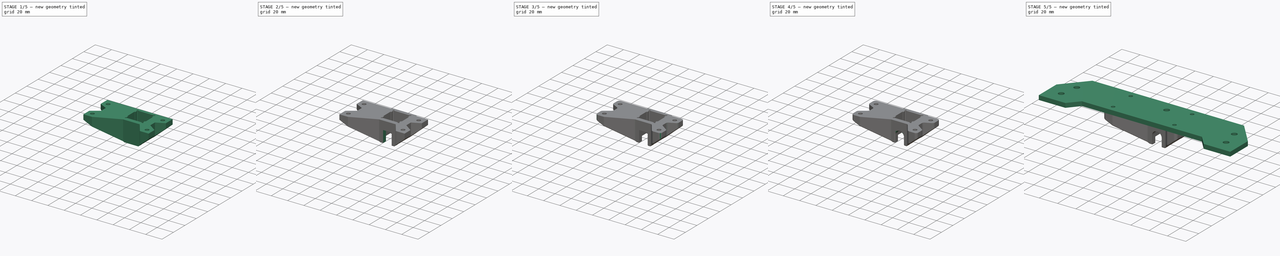
[diagram: build sequence overview — one tinted view per stage of 5, left to right]
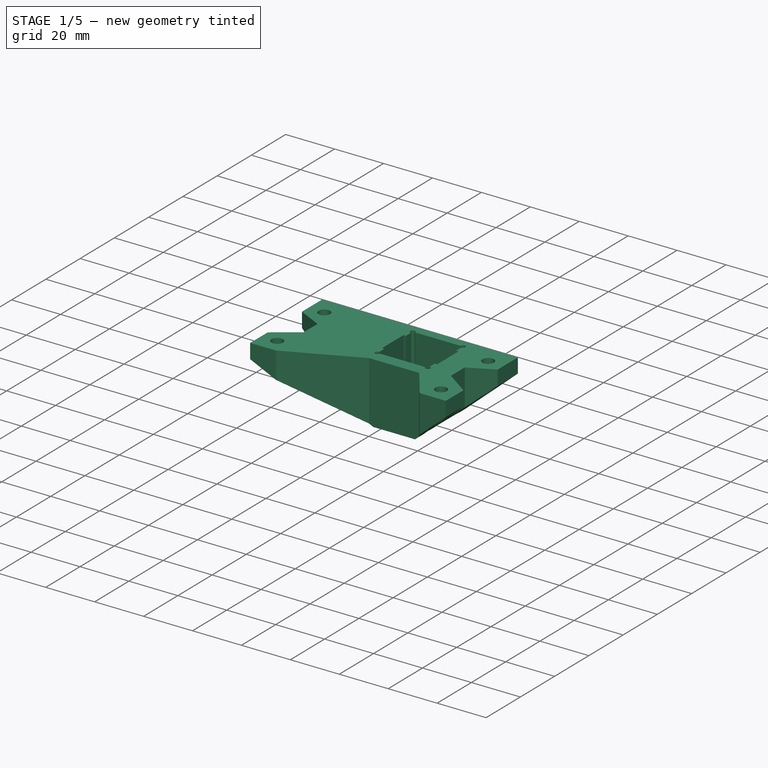
[diagram: stage 1 of 5 — iso view after this stage's code; geometry added in this stage tinted green]
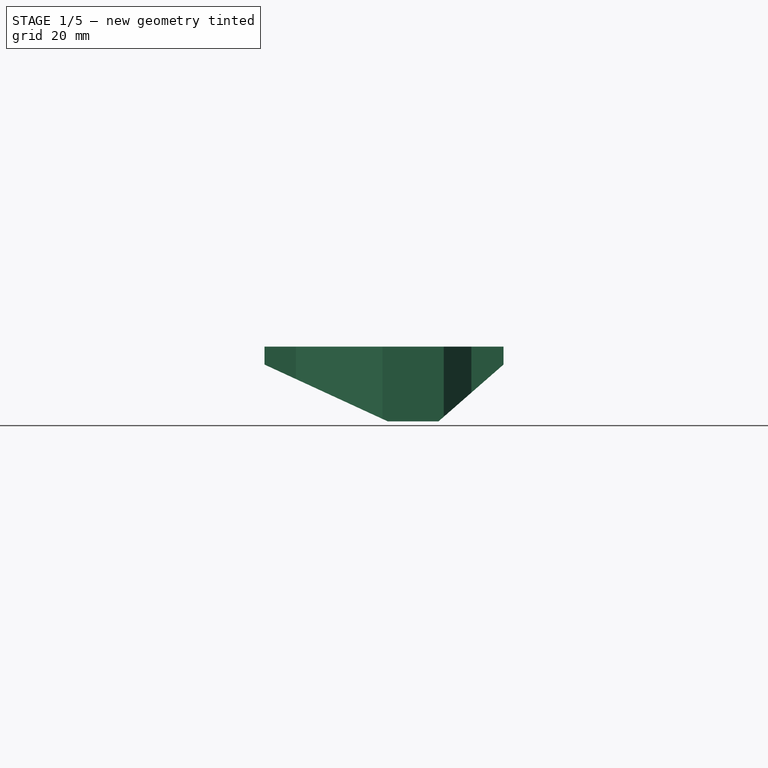
[diagram: stage 1 of 5 — front view after this stage's code; geometry added in this stage tinted green]
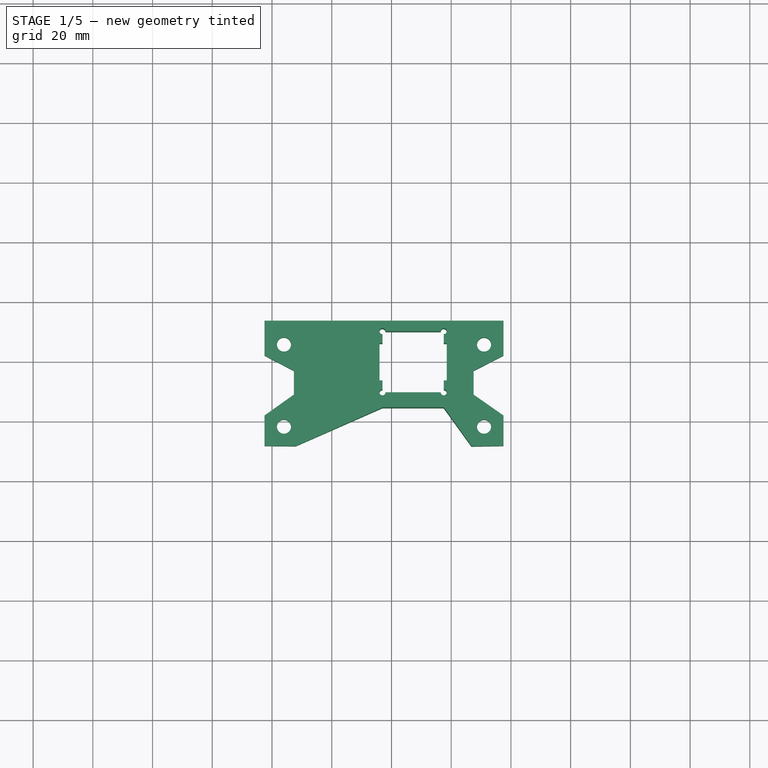
[diagram: stage 1 of 5 — top view after this stage's code; geometry added in this stage tinted green]
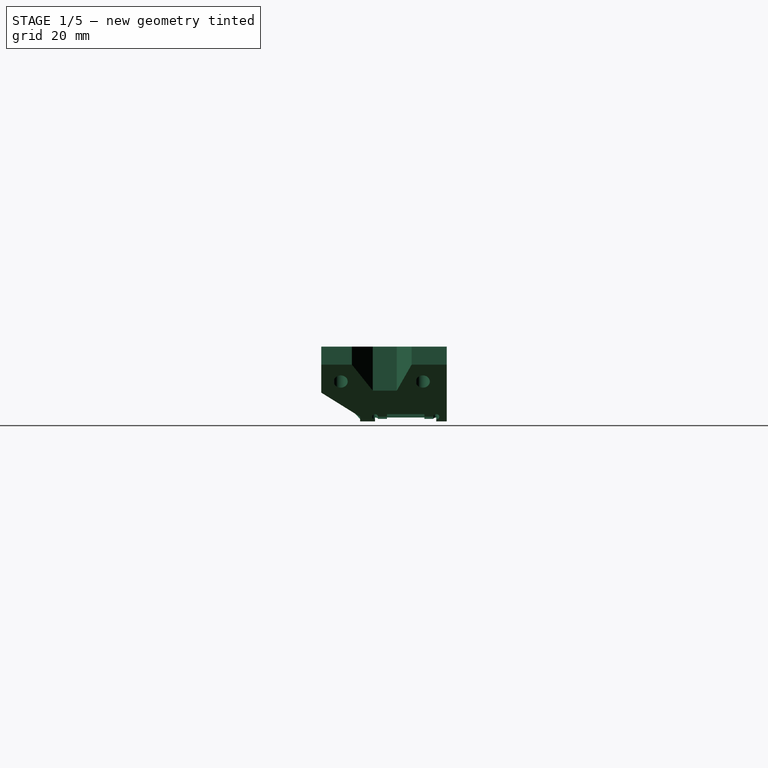
[diagram: stage 1 of 5 — right view after this stage's code; geometry added in this stage tinted green]
FCSTD DOCUMENT  (FreeCAD 0.17R13662 (Git))
Label: Y_idler_housing
License: CreativeCommons Attribution-ShareAlike
LicenseURL: http://creativecommons.org/licenses/by-sa/4.0/
objects: Sketcher::SketchObject×8, PartDesign::Pocket×7, PartDesign::Fillet×7, Part::FeaturePython×2, App::FeaturePython×2, PartDesign::Pad×1, PartDesign::Chamfer×1, PartDesign::Body×1
note: 35 computed .brp shape members not serialized (recipe doc carries the construction recipe); baked Part::Feature solids carry a one-line shape summary decoded from their .brp

FEATURE [App::FeaturePython] circularEdgeConstraint01  label="circularEdgeConstraint01__y_end_plate_step1_01"  # a2plus constraint (typed FeaturePython)
  Object1 = Y_idler_housing_v3_01
  Object2 = y_end_plate_step1_01
  SubElement1 = Edge64
  SubElement2 = Edge52
  Type = circularEdge
  directionConstraint = 1
  lockRotation = false
  offset = 0
FEATURE [App::FeaturePython] circularEdgeConstraint01_mirror  label="circularEdgeConstraint01__Y_idler_housing_v3_01"  # a2plus constraint (typed FeaturePython)
  Object1 = Y_idler_housing_v3_01
  Object2 = y_end_plate_step1_01
  SubElement1 = Edge64
  SubElement2 = Edge52
  Type = circularEdge
  directionConstraint = 1
  lockRotation = false
  offset = 0
FEATURE [Sketcher::SketchObject] Sketch
  MapMode = 5
  Support = -> [XY_Plane]
  sketch-geometry (16):
    g0: LineSegment StartX=-42.5 StartY=11.5 StartZ=0 EndX=-42.5 EndY=21.75 EndZ=0
    g1: LineSegment StartX=-42.5 StartY=21.75 StartZ=0 EndX=-32.6869 EndY=28.75 EndZ=0
    g2: LineSegment StartX=-32.6869 StartY=28.75 StartZ=0 EndX=-32.6869 EndY=36.75 EndZ=0
    g3: LineSegment StartX=-32.6869 StartY=36.75 StartZ=0 EndX=-42.5 EndY=41.75 EndZ=0
    g4: LineSegment StartX=-42.5 StartY=41.75 StartZ=0 EndX=-42.5 EndY=53.5 EndZ=0
    g5: LineSegment StartX=-42.5 StartY=53.5 StartZ=0 EndX=37.5 EndY=53.5 EndZ=0
    g6: LineSegment StartX=37.5 StartY=53.5 StartZ=0 EndX=37.5 EndY=41.75 EndZ=0
    g7: LineSegment StartX=37.5 StartY=41.75 StartZ=0 EndX=27.5 EndY=36.7642 EndZ=0
    g8: LineSegment StartX=27.5 StartY=36.7642 StartZ=0 EndX=27.5 EndY=28.7521 EndZ=0
    g9: LineSegment StartX=27.5 StartY=28.7521 StartZ=0 EndX=37.5 EndY=21.75 EndZ=0
    g10: LineSegment StartX=37.5 StartY=21.75 StartZ=0 EndX=37.5 EndY=11.5 EndZ=0
    g11: LineSegment StartX=37.5 StartY=11.5 StartZ=0 EndX=26.75 EndY=11.5 EndZ=0
    g12: LineSegment StartX=26.75 StartY=11.5 StartZ=0 EndX=17.5 EndY=24.5 EndZ=0
    g13: LineSegment StartX=17.5 StartY=24.5 StartZ=0 EndX=-3 EndY=24.5 EndZ=0
    g14: LineSegment StartX=-3 StartY=24.5 StartZ=0 EndX=-32 EndY=11.5 EndZ=0
    g15: LineSegment StartX=-32 StartY=11.5 StartZ=0 EndX=-42.5 EndY=11.5 EndZ=0
  constraints (48):
    c: Vertical(g0)
    c: Coincident(g0,g1)
    c: Coincident(g1,g2)
    c: Vertical(g2)
    c: Coincident(g2,g3)
    c: Coincident(g3,g4)
    c: Vertical(g4)
    c: Coincident(g4,g5)
    c: Horizontal(g5)
    c: DistanceY(g0) = 11.5
    c: DistanceX(g0) = -42.5
    c: DistanceX(g3,g0) = 0
    c: DistanceY(g4) = 53.5
    c: Coincident(g5,g6)
    c: Vertical(g6)
    c: Coincident(g6,g7)
    c: Coincident(g7,g8)
    c: Vertical(g8)
    c: Coincident(g8,g9)
    c: Coincident(g9,g10)
    c: Vertical(g10)
    c: DistanceX(g10) = 37.5
    c: DistanceY(g0,g0) = 10.25
    c: Equal(g10,g0)
    c: DistanceY(g4,g4) = 11.75
    c: Equal(g6,g4)
    c: DistanceX(g9,g6) = 0
    c: Angle(g9) = -0.610865
    c: DistanceX(g9,g9) = 10
    c: Angle(g7) = -2.67908
    c: Coincident(g10,g11)
    c: Horizontal(g11)
    c: Coincident(g11,g12)
    c: Coincident(g12,g13)
    c: Horizontal(g13)
    c: Coincident(g13,g14)
    c: Coincident(g14,g15)
    c: Coincident(g15,g0)
    c: Horizontal(g15)
    c: DistanceX(g15,g15) = 10.5
    c: DistanceX(g14,g14) = 29
    c: DistanceY(g14,g14) = 13
    c: DistanceX(g13,g13) = 20.5
    c: DistanceY(g10) = 11.5
    c: DistanceX(g12,g12) = 9.25
    c: Angle(g3) = 2.67035
    c: DistanceY(g3,g3) = 5
    c: DistanceY(g2,g2) = 8
FEATURE [PartDesign::Pad] Pad
  Length = 25
  Length2 = 100
  Profile = -> Sketch
  Reversed = true
  Type = 0
FEATURE [Sketcher::SketchObject] Sketch001
  ExternalGeometry = -> [Pad]
  MapMode = 5
  Placement = pos=(0,53.5,0) rot=(0,0.707107,0.707107;3.14159rad)
  Support = -> [Pad]
  sketch-geometry (6):
    g0: LineSegment StartX=42.5 StartY=-6 StartZ=0 EndX=1.25 EndY=-25 EndZ=0
    g1: LineSegment StartX=1.25 StartY=-25 StartZ=0 EndX=42.5 EndY=-25 EndZ=0
    g2: LineSegment StartX=42.5 StartY=-25 StartZ=0 EndX=42.5 EndY=-6 EndZ=0
    g3: LineSegment StartX=-37.5 StartY=-6 StartZ=0 EndX=-15.75 EndY=-25 EndZ=0
    g4: LineSegment StartX=-15.75 StartY=-25 StartZ=0 EndX=-37.5 EndY=-25 EndZ=0
    g5: LineSegment StartX=-37.5 StartY=-25 StartZ=0 EndX=-37.5 EndY=-6 EndZ=0
  constraints (16):
    c: Coincident(g0,g1)
    c: Horizontal(g1)
    c: Coincident(g1,g2)
    c: Coincident(g2,g0)
    c: Coincident(g3,g4)
    c: Horizontal(g4)
    c: Coincident(g4,g5)
    c: Coincident(g5,g3)
    c: DistanceY(g5,g5) = 19
    c: DistanceX(g4,g4) = 21.75
    c: DistanceY(g2,g2) = 19
    c: DistanceX(g1,g1) = 41.25
    c: Coincident(g1,g-4)
    c: Coincident(g4,g-3)
    c: PointOnObject(g3,g-3)
    c: PointOnObject(g0,g-4)
FEATURE [PartDesign::Pocket] Pocket
  BaseFeature = -> Pad
  Length = 5
  Length2 = 100
  Profile = -> Sketch001
  Type = 1
FEATURE [Sketcher::SketchObject] Sketch002
  ExternalGeometry = -> [Pocket]
  MapMode = 5
  Placement = pos=(0,0,-25) rot=(1,0,0;3.14159rad)
  sketch-geometry (12):
    g0: LineSegment StartX=-3 StartY=-29.5 StartZ=0 EndX=17.5 EndY=-29.5 EndZ=0
    g1: LineSegment StartX=17.5 StartY=-29.5 StartZ=0 EndX=17.5 EndY=-50 EndZ=0
    g2: LineSegment StartX=17.5 StartY=-50 StartZ=0 EndX=-3 EndY=-50 EndZ=0
    g3: LineSegment StartX=-3 StartY=-50 StartZ=0 EndX=-3 EndY=-29.5 EndZ=0
    g4: Circle CenterX=31 CenterY=-18 CenterZ=0 NormalX=0 NormalY=0 NormalZ=1 AngleXU=0 Radius=2.35
    g5: Circle CenterX=31 CenterY=-45.5 CenterZ=0 NormalX=0 NormalY=0 NormalZ=1 AngleXU=0 Radius=2.35
    g6: Circle CenterX=-36 CenterY=-45.5 CenterZ=0 NormalX=0 NormalY=0 NormalZ=1 AngleXU=0 Radius=2.35
    g7: Circle CenterX=-36 CenterY=-18 CenterZ=0 NormalX=0 NormalY=0 NormalZ=1 AngleXU=0 Radius=2.35
    g8: LineSegment [constr] StartX=-36 StartY=-18 StartZ=0 EndX=31 EndY=-18 EndZ=0
    g9: LineSegment [constr] StartX=31 StartY=-18 StartZ=0 EndX=31 EndY=-45.5 EndZ=0
    g10: LineSegment [constr] StartX=31 StartY=-45.5 StartZ=0 EndX=-36 EndY=-45.5 EndZ=0
    g11: LineSegment [constr] StartX=-36 StartY=-45.5 StartZ=0 EndX=-36 EndY=-18 EndZ=0
  constraints (32):
    c: Coincident(g0,g1)
    c: Coincident(g1,g2)
    c: Coincident(g2,g3)
    c: Coincident(g3,g0)
    c: Horizontal(g0)
    c: Horizontal(g2)
    c: Vertical(g1)
    c: Vertical(g3)
    c: DistanceY(g3,g3) = 20.5
    c: Coincident(g8,g9)
    c: Coincident(g9,g10)
    c: Coincident(g10,g11)
    c: Coincident(g11,g8)
    c: Horizontal(g8)
    c: Horizontal(g10)
    c: Vertical(g9)
    c: Vertical(g11)
    c: Coincident(g8,g7)
    c: Coincident(g9,g5)
    c: Coincident(g4,g8)
    c: Coincident(g6,g10)
    c: Radius(g4) = 2.35
    c: Equal(g4,g5)
    c: Equal(g4,g6)
    c: Equal(g4,g7)
    c: DistanceX(g7,g-3) = -6.5
    c: DistanceY(g7,g-3) = 6.5
    c: DistanceX(g8,g8) = 67
    c: DistanceY(g9,g9) = 27.5
    c: DistanceX(g0,g-4) = 1.75
    c: DistanceY(g0,g-4) = 5
    c: DistanceX(g0,g0) = 20.5
FEATURE [PartDesign::Pocket] Pocket001
  BaseFeature = -> Pocket
  Length = 5
  Length2 = 100
  Profile = -> Sketch002
  Type = 1
FEATURE [Sketcher::SketchObject] Sketch003
  ExternalGeometry = -> [Pocket001]
  MapMode = 5
  Placement = pos=(0,0,-25) rot=(1,0,0;3.14159rad)
  sketch-geometry (8):
    g0: Circle CenterX=-3 CenterY=-29.5 CenterZ=0 NormalX=0 NormalY=0 NormalZ=1 AngleXU=0 Radius=1
    g1: Circle CenterX=17.5 CenterY=-29.5 CenterZ=0 NormalX=0 NormalY=0 NormalZ=1 AngleXU=0 Radius=1
    g2: Circle CenterX=17.5 CenterY=-50 CenterZ=0 NormalX=0 NormalY=0 NormalZ=1 AngleXU=0 Radius=1
    g3: Circle CenterX=-3 CenterY=-50 CenterZ=0 NormalX=0 NormalY=0 NormalZ=1 AngleXU=0 Radius=1
    g4: LineSegment StartX=-4 StartY=-33.5 StartZ=0 EndX=18.5 EndY=-33.5 EndZ=0
    g5: LineSegment StartX=18.5 StartY=-33.5 StartZ=0 EndX=18.5 EndY=-46 EndZ=0
    g6: LineSegment StartX=18.5 StartY=-46 StartZ=0 EndX=-4 EndY=-46 EndZ=0
    g7: LineSegment StartX=-4 StartY=-46 StartZ=0 EndX=-4 EndY=-33.5 EndZ=0
  constraints (21):
    c: Radius(g1) = 1
    c: Equal(g1,g0)
    c: Equal(g1,g3)
    c: Equal(g1,g2)
    c: Coincident(g4,g5)
    c: Coincident(g5,g6)
    c: Coincident(g6,g7)
    c: Coincident(g7,g4)
    c: Horizontal(g4)
    c: Horizontal(g6)
    c: Vertical(g5)
    c: Vertical(g7)
    c: DistanceX(g5,g2) = -1
    c: DistanceY(g5,g2) = -4
    c: DistanceY(g4,g0) = 4
    c: Coincident(g1,g-4)
    c: Coincident(g0,g-3)
    c: DistanceX(g0,g4) = -1
    c: DistanceX(g1,g4) = 1
    c: Coincident(g2,g-4)
    c: Coincident(g3,g-3)
FEATURE [PartDesign::Pocket] Pocket002
  BaseFeature = -> Pocket001
  Length = 5
  Length2 = 100
  Profile = -> Sketch003
  Type = 1
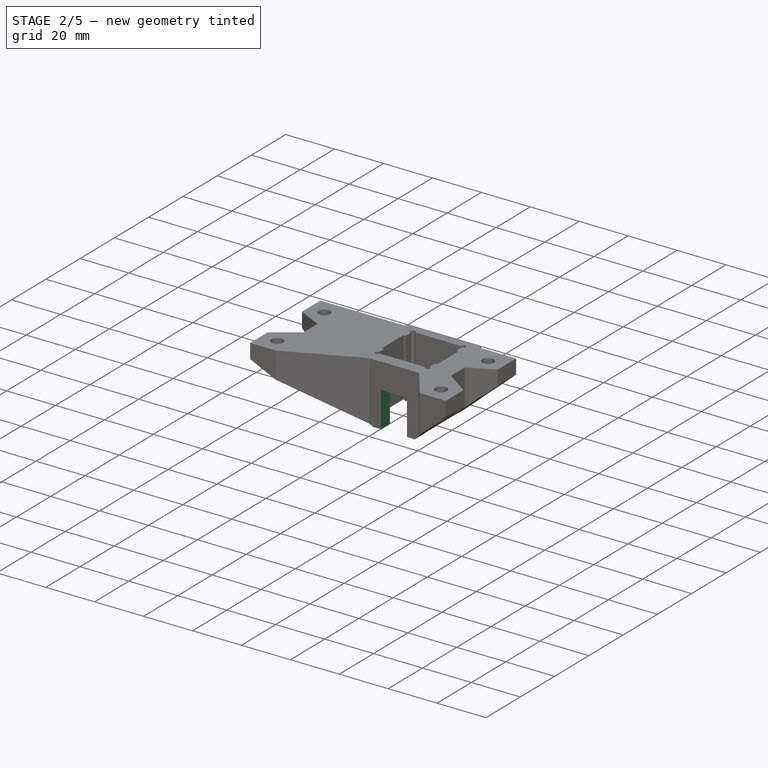
[diagram: stage 2 of 5 — iso view after this stage's code; geometry added in this stage tinted green]
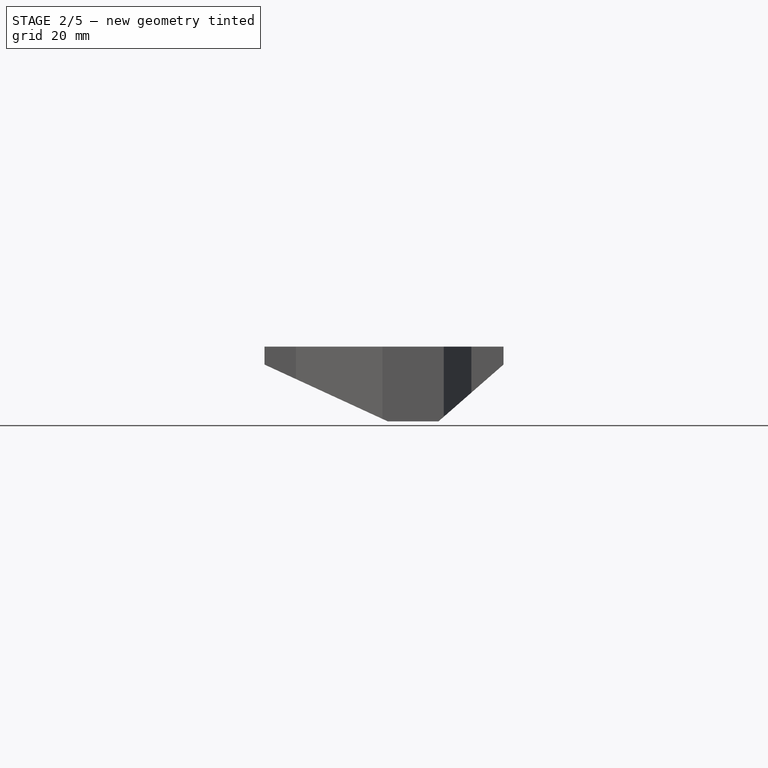
[diagram: stage 2 of 5 — front view after this stage's code; geometry added in this stage tinted green]
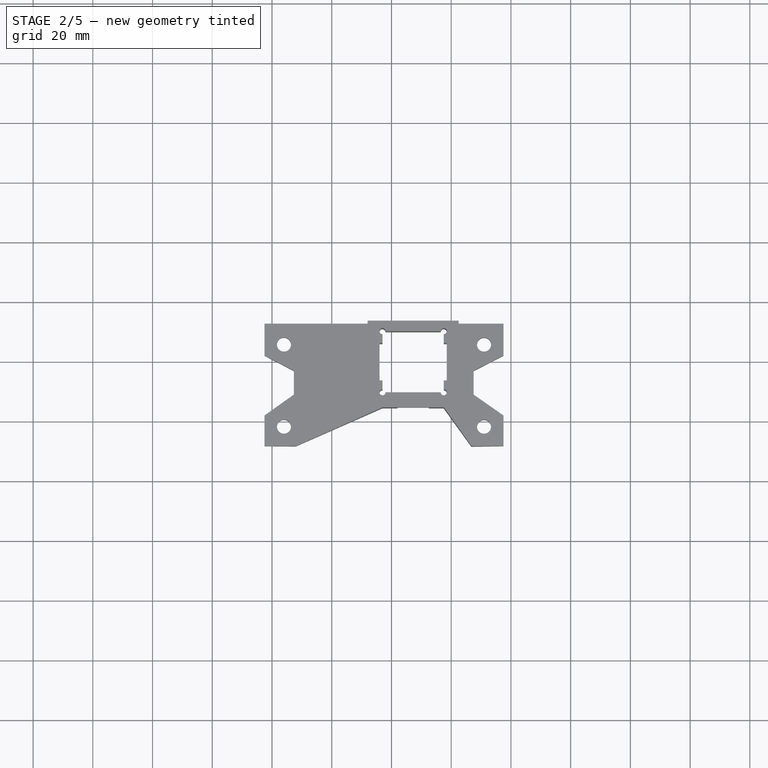
[diagram: stage 2 of 5 — top view after this stage's code; geometry added in this stage tinted green]
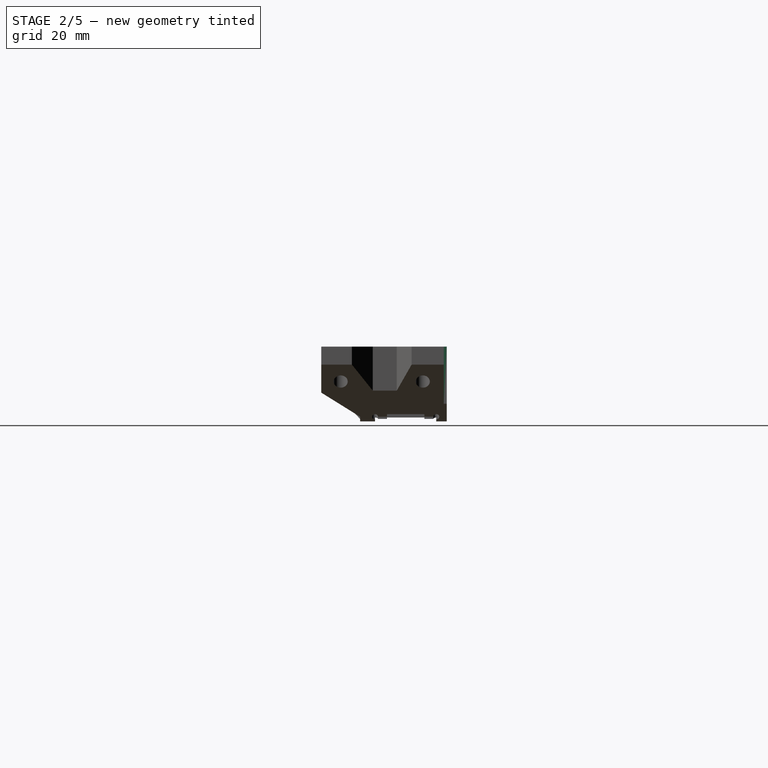
[diagram: stage 2 of 5 — right view after this stage's code; geometry added in this stage tinted green]
FEATURE [Sketcher::SketchObject] Sketch004
  ExternalGeometry = -> [Pocket002]
  MapMode = 5
  Placement = pos=(0,24.5,0) rot=(1,0,0;1.5708rad)
  Support = -> [Pocket002]
  sketch-geometry (4):
    g0: LineSegment StartX=12.5 StartY=-25 StartZ=0 EndX=2 EndY=-25 EndZ=0
    g1: LineSegment StartX=2 StartY=-25 StartZ=0 EndX=2 EndY=-10.5 EndZ=0
    g2: LineSegment StartX=2 StartY=-10.5 StartZ=0 EndX=12.5 EndY=-10.5 EndZ=0
    g3: LineSegment StartX=12.5 StartY=-10.5 StartZ=0 EndX=12.5 EndY=-25 EndZ=0
  constraints (12):
    c: Coincident(g0,g1)
    c: Coincident(g1,g2)
    c: Coincident(g2,g3)
    c: Coincident(g3,g0)
    c: Horizontal(g0)
    c: Horizontal(g2)
    c: Vertical(g1)
    c: Vertical(g3)
    c: DistanceY(g1,g1) = 14.5
    c: DistanceX(g0,g0) = 10.5
    c: PointOnObject(g0,g-3)
    c: DistanceX(g0,g-3) = 3.25
FEATURE [PartDesign::Pocket] Pocket003
  BaseFeature = -> Pocket002
  Length = 5
  Length2 = 100
  Profile = -> Sketch004
  Type = 0
FEATURE [Sketcher::SketchObject] Sketch005
  ExternalGeometry = -> [Pocket003]
  MapMode = 5
  Placement = pos=(0,0,-25) rot=(1,0,0;3.14159rad)
  sketch-geometry (4):
    g0: LineSegment StartX=-32.6869 StartY=-28.75 StartZ=0 EndX=-7.68695 EndY=-29.5 EndZ=0
    g1: LineSegment StartX=-7.68695 StartY=-29.5 StartZ=0 EndX=-7.68695 EndY=-50 EndZ=0
    g2: LineSegment StartX=-7.68695 StartY=-50 StartZ=0 EndX=-32.6869 EndY=-36.75 EndZ=0
    g3: LineSegment StartX=-32.6869 StartY=-36.75 StartZ=0 EndX=-32.6869 EndY=-28.75 EndZ=0
  constraints (10):
    c: Coincident(g0,g1)
    c: Vertical(g1)
    c: Coincident(g1,g2)
    c: Coincident(g2,g3)
    c: Coincident(g3,g0)
    c: DistanceY(g0,g0) = 0.75
    c: DistanceX(g0,g0) = 25
    c: DistanceY(g1,g1) = 20.5
    c: Coincident(g0,g-3)
    c: Coincident(g2,g-4)
FEATURE [PartDesign::Pocket] Pocket004
  BaseFeature = -> Pocket003
  Length = 18
  Length2 = 100
  Profile = -> Sketch005
  Type = 0
FEATURE [Sketcher::SketchObject] Sketch006
  ExternalGeometry = -> [Pocket004]
  MapMode = 5
  Support = -> [Pocket004]
  sketch-geometry (8):
    g0: LineSegment StartX=37.5 StartY=53.5 StartZ=0 EndX=22.5 EndY=53.5 EndZ=0
    g1: LineSegment StartX=22.5 StartY=53.5 StartZ=0 EndX=22.5 EndY=52.5 EndZ=0
    g2: LineSegment StartX=22.5 StartY=52.5 StartZ=0 EndX=37.5 EndY=52.5 EndZ=0
    g3: LineSegment StartX=37.5 StartY=52.5 StartZ=0 EndX=37.5 EndY=53.5 EndZ=0
    g4: LineSegment StartX=-42.5 StartY=53.5 StartZ=0 EndX=-8 EndY=53.5 EndZ=0
    g5: LineSegment StartX=-8 StartY=53.5 StartZ=0 EndX=-8 EndY=52.5 EndZ=0
    g6: LineSegment StartX=-8 StartY=52.5 StartZ=0 EndX=-42.5 EndY=52.5 EndZ=0
    g7: LineSegment StartX=-42.5 StartY=52.5 StartZ=0 EndX=-42.5 EndY=53.5 EndZ=0
  constraints (22):
    c: Coincident(g0,g1)
    c: Coincident(g1,g2)
    c: Coincident(g2,g3)
    c: Coincident(g3,g0)
    c: Horizontal(g0)
    c: Horizontal(g2)
    c: Vertical(g1)
    c: Vertical(g3)
    c: Coincident(g0,g-3)
    c: Coincident(g4,g5)
    c: Coincident(g5,g6)
    c: Coincident(g6,g7)
    c: Coincident(g7,g4)
    c: Horizontal(g4)
    c: Horizontal(g6)
    c: Vertical(g5)
    c: Vertical(g7)
    c: Coincident(g4,g-3)
    c: DistanceY(g5,g5) = 1
    c: Equal(g1,g5)
    c: DistanceX(g-5,g1) = 5
    c: DistanceX(g5,g-4) = 5
FEATURE [PartDesign::Pocket] Pocket005
  BaseFeature = -> Pocket004
  Length = 5
  Length2 = 100
  Profile = -> Sketch006
  Type = 1
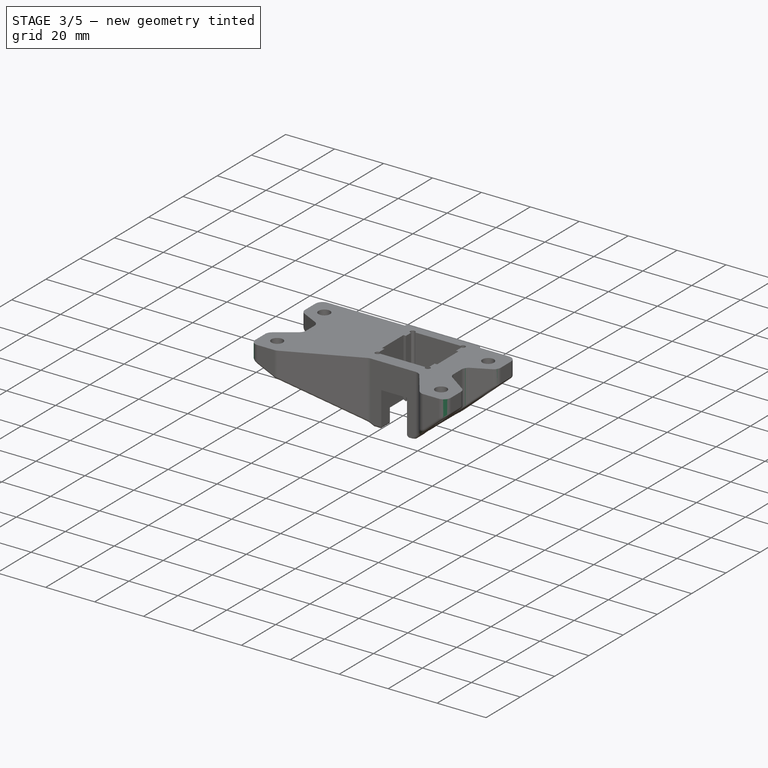
[diagram: stage 3 of 5 — iso view after this stage's code; geometry added in this stage tinted green]
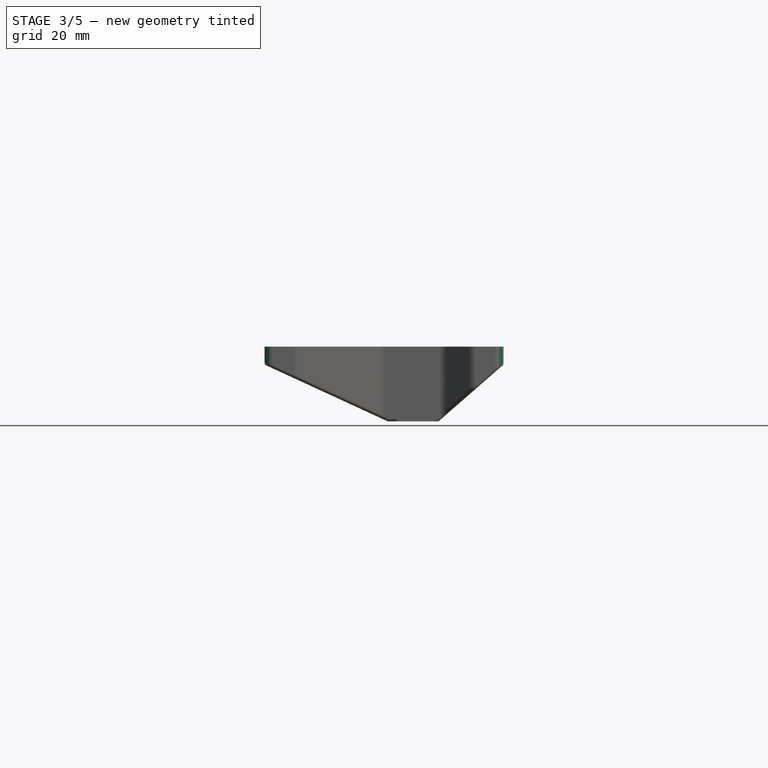
[diagram: stage 3 of 5 — front view after this stage's code; geometry added in this stage tinted green]
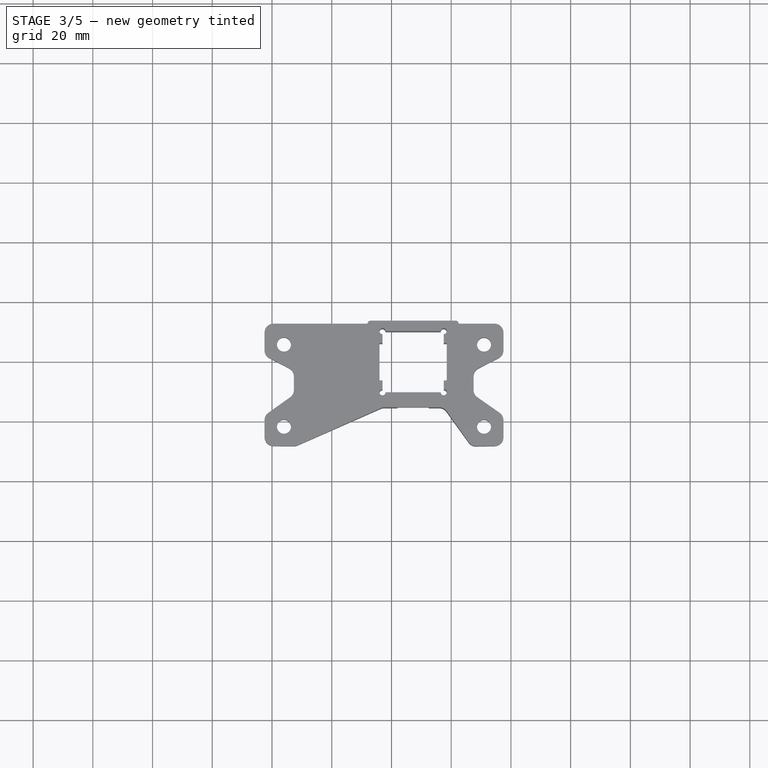
[diagram: stage 3 of 5 — top view after this stage's code; geometry added in this stage tinted green]
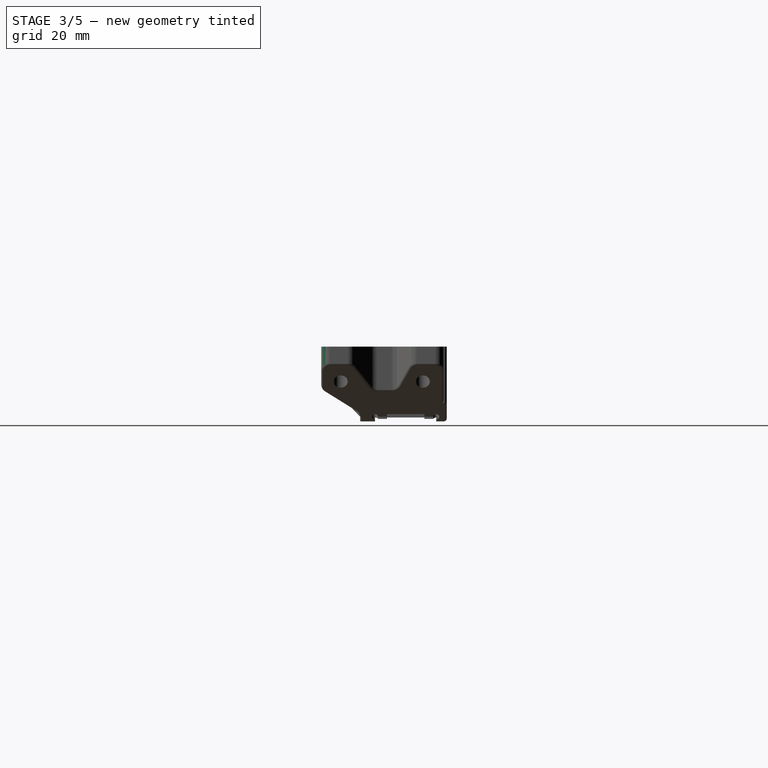
[diagram: stage 3 of 5 — right view after this stage's code; geometry added in this stage tinted green]
FEATURE [PartDesign::Fillet] Fillet
  Base = -> Pocket005 [Edge104,Edge105,Edge106,Edge46,Edge2,Edge4,Edge73,Edge74,Edge81,Edge83,Edge85,Edge87,Edge89,Edge91,Edge93,Edge95,Edge154,Edge150]
  BaseFeature = -> Pocket005
  Radius = 3
FEATURE [PartDesign::Fillet] Fillet001
  Base = -> Fillet [Edge142,Edge145]
  BaseFeature = -> Fillet
  Radius = 0.99
FEATURE [PartDesign::Fillet] Fillet002
  Base = -> Fillet001 [Edge205,Edge101,Edge206]
  BaseFeature = -> Fillet001
  Radius = 1
FEATURE [PartDesign::Fillet] Fillet003
  Base = -> Fillet002 [Edge183,Edge123,Edge96,Edge115,Edge116,Edge268,Edge231]
  BaseFeature = -> Fillet002
  Radius = 1
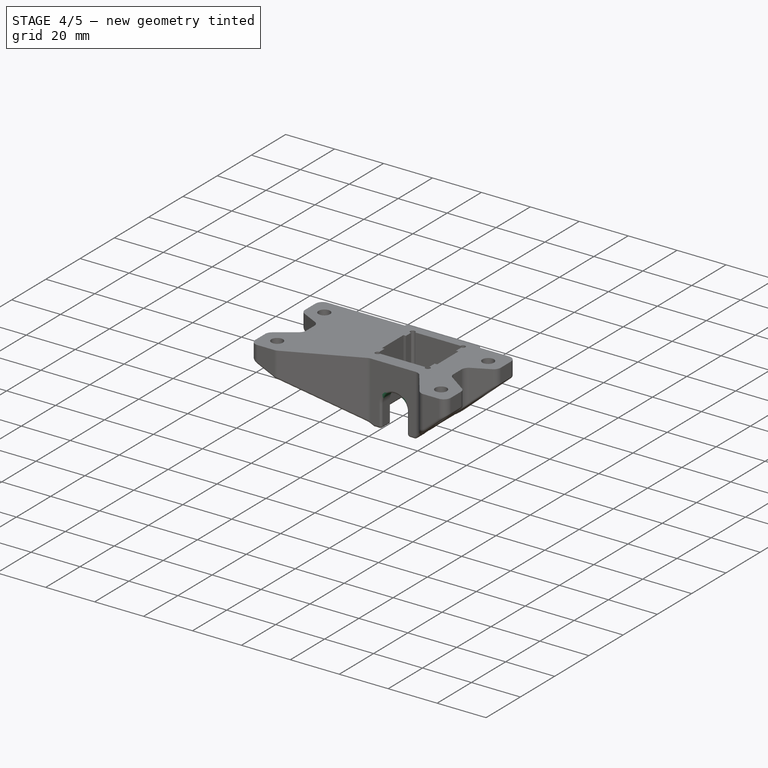
[diagram: stage 4 of 5 — iso view after this stage's code; geometry added in this stage tinted green]
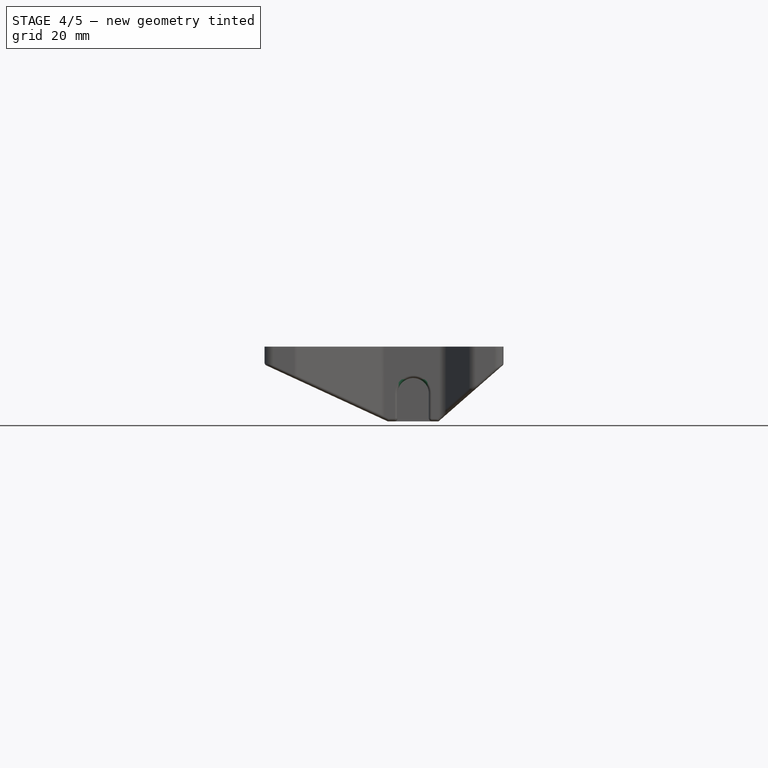
[diagram: stage 4 of 5 — front view after this stage's code; geometry added in this stage tinted green]
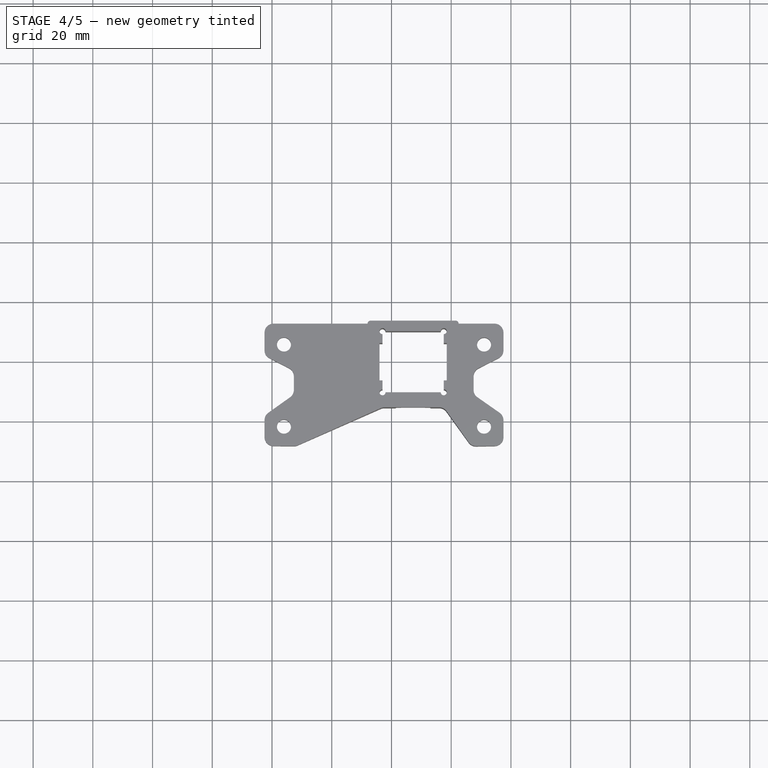
[diagram: stage 4 of 5 — top view after this stage's code; geometry added in this stage tinted green]
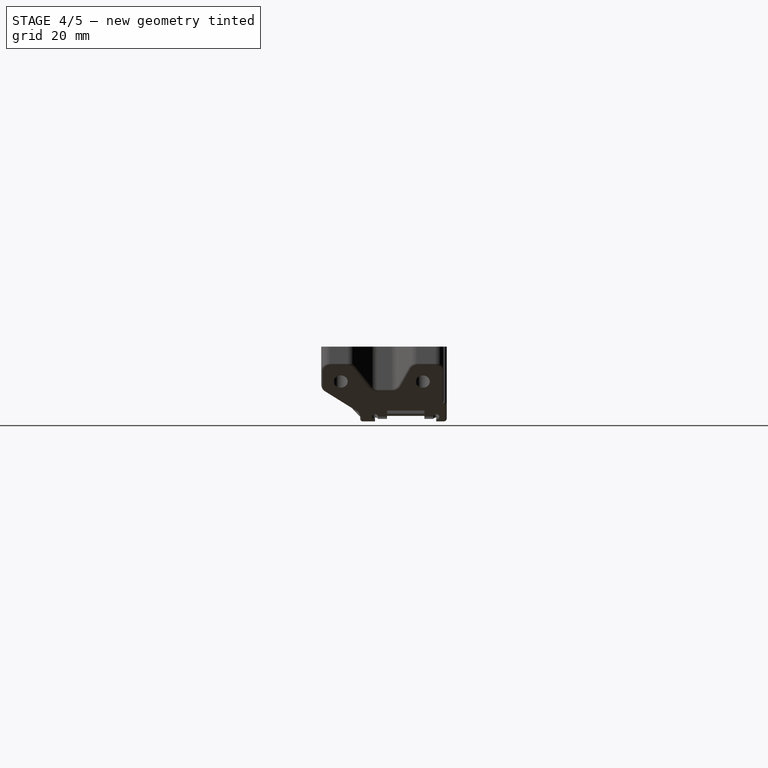
[diagram: stage 4 of 5 — right view after this stage's code; geometry added in this stage tinted green]
FEATURE [PartDesign::Fillet] Fillet004
  Base = -> Fillet003 [Edge328,Edge329]
  BaseFeature = -> Fillet003
  Radius = 5.24
FEATURE [PartDesign::Fillet] Fillet005
  Base = -> Fillet004 [Edge1]
  BaseFeature = -> Fillet004
  Radius = 0.9
FEATURE [PartDesign::Fillet] Fillet006
  Base = -> Fillet005 [Edge258,Edge116]
  BaseFeature = -> Fillet005
  Radius = 1
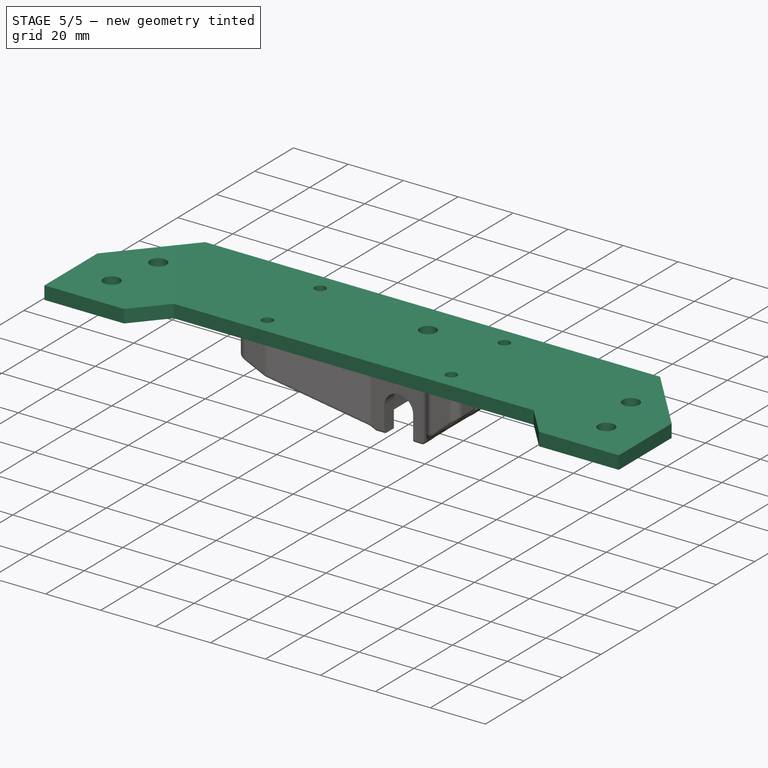
[diagram: stage 5 of 5 — iso view after this stage's code; geometry added in this stage tinted green]
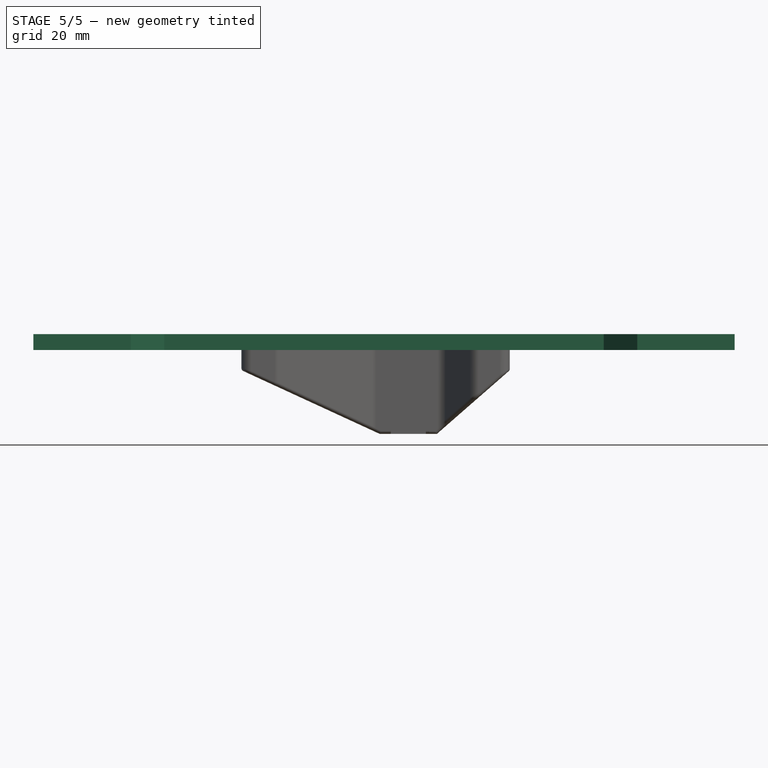
[diagram: stage 5 of 5 — front view after this stage's code; geometry added in this stage tinted green]
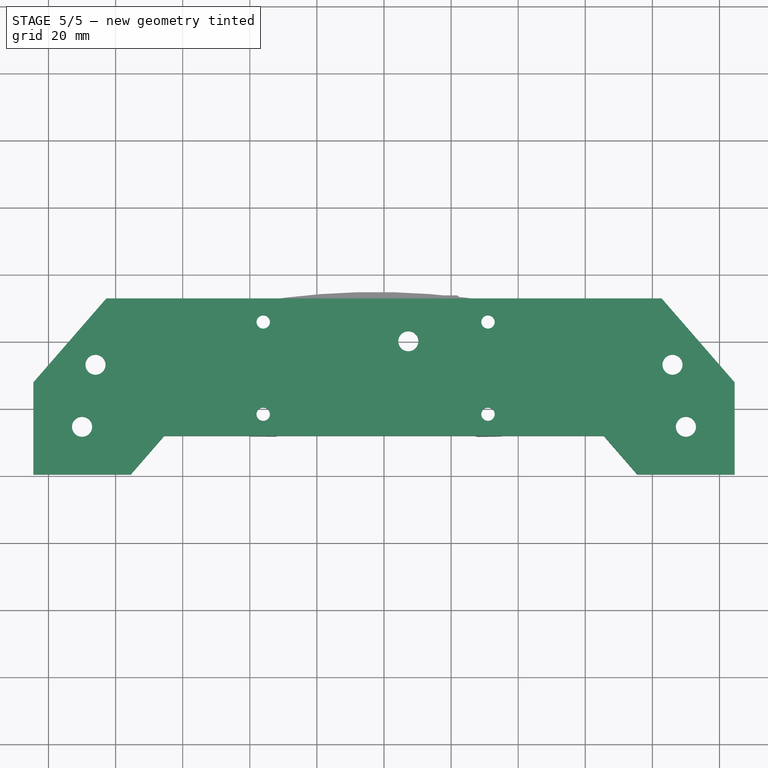
[diagram: stage 5 of 5 — top view after this stage's code; geometry added in this stage tinted green]
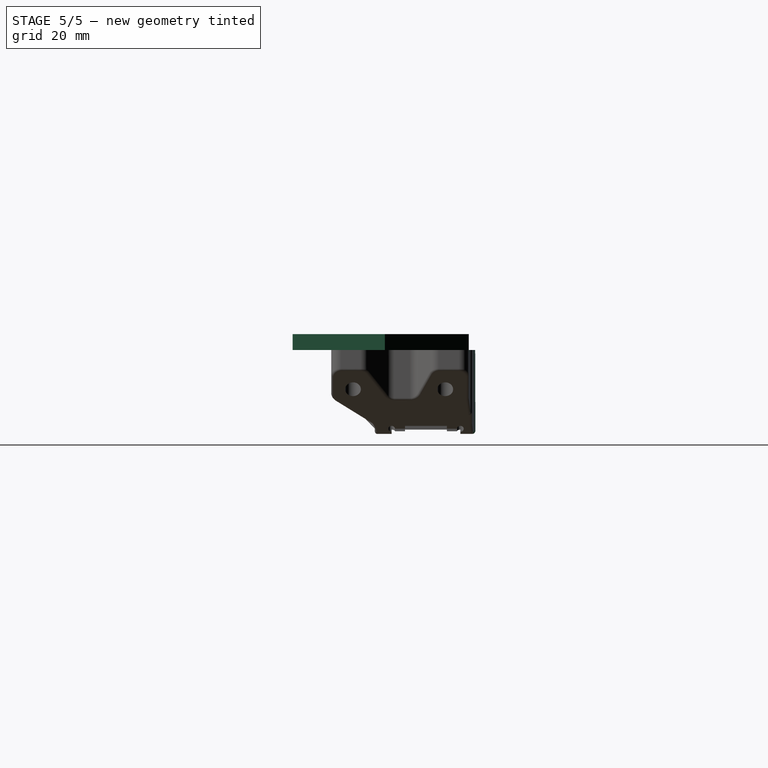
[diagram: stage 5 of 5 — right view after this stage's code; geometry added in this stage tinted green]
FEATURE [Part::FeaturePython] y_end_plate_step1_01  # a2plus imported part (geometry in sourceFile) (typed FeaturePython)
  fixedPosition = true
  sourceFile = <userpath>/Projects/taz-quiver/Production_parts/Machined_parts/y_end_plate/y_end_plate.step
  timeLastImport = 1.52286e+09
  updateColors = true
FEATURE [Part::FeaturePython] Y_idler_housing_v3_01  # a2plus imported part (geometry in sourceFile) (typed FeaturePython)
  Placement = pos=(37.5,11.75,0) rot=(0,1,0;3.14159rad)
  fixedPosition = false
  sourceFile = <userpath>/Projects/taz-quiver/Production_parts/Printed_parts/Y/Y_idler/Y_idler_housing_v3.fcstd
  timeLastImport = 1.52227e+09
  updateColors = true
FEATURE [PartDesign::Chamfer] Chamfer
  Base = -> Fillet006 [Edge134,Edge183,Edge184,Edge136]
  BaseFeature = -> Fillet006
  Size = 1
FEATURE [Sketcher::SketchObject] Sketch007
  ExternalGeometry = -> [Chamfer]
  MapMode = 5
  Placement = pos=(0,0,0) rot=(1,0,0;3.14159rad)
  sketch-geometry (20):
    g0: LineSegment [constr] StartX=-36 StartY=-11.5 StartZ=0 EndX=-36 EndY=-18 EndZ=0
    g1: LineSegment [constr] StartX=-38.8566 StartY=-39.8936 StartZ=0 EndX=-36 EndY=-45.5 EndZ=0
    g2: LineSegment [constr] StartX=31 StartY=-11.5 StartZ=0 EndX=31 EndY=-18 EndZ=0
    g3: LineSegment [constr] StartX=31 StartY=-45.5 StartZ=0 EndX=33.7915 EndY=-39.901 EndZ=0
    g4: LineSegment StartX=-36.05 StartY=-11.5 StartZ=0 EndX=-35.95 EndY=-11.5 EndZ=0
    g5: LineSegment StartX=-35.95 StartY=-11.5 StartZ=0 EndX=-35.95 EndY=-15.6505 EndZ=0
    g6: LineSegment StartX=-35.95 StartY=-15.6505 StartZ=0 EndX=-36.05 EndY=-15.6505 EndZ=0
    g7: LineSegment StartX=-36.05 StartY=-15.6505 StartZ=0 EndX=-36.05 EndY=-11.5 EndZ=0
    g8: LineSegment StartX=30.95 StartY=-11.5 StartZ=0 EndX=31.05 EndY=-11.5 EndZ=0
    g9: LineSegment StartX=31.05 StartY=-11.5 StartZ=0 EndX=31.05 EndY=-15.6505 EndZ=0
    g10: LineSegment StartX=31.05 StartY=-15.6505 StartZ=0 EndX=30.95 EndY=-15.6505 EndZ=0
    g11: LineSegment StartX=30.95 StartY=-15.6505 StartZ=0 EndX=30.95 EndY=-11.5 EndZ=0
    g12: LineSegment StartX=32.0036 StartY=-43.3751 StartZ=0 EndX=33.7468 EndY=-39.8787 EndZ=0
    g13: LineSegment StartX=33.7468 StartY=-39.8787 StartZ=0 EndX=33.8363 EndY=-39.9233 EndZ=0
    g14: LineSegment StartX=33.8363 StartY=-39.9233 StartZ=0 EndX=32.0931 EndY=-43.4197 EndZ=0
    g15: LineSegment StartX=32.0931 StartY=-43.4197 StartZ=0 EndX=32.0036 EndY=-43.3751 EndZ=0
    g16: LineSegment StartX=-38.9012 StartY=-39.9163 StartZ=0 EndX=-37.1112 EndY=-43.4293 EndZ=0
    g17: LineSegment StartX=-37.1112 StartY=-43.4293 StartZ=0 EndX=-37.0221 EndY=-43.3839 EndZ=0
    g18: LineSegment StartX=-37.0221 StartY=-43.3839 StartZ=0 EndX=-38.8121 EndY=-39.8709 EndZ=0
    g19: LineSegment StartX=-38.8121 StartY=-39.8709 StartZ=0 EndX=-38.9012 EndY=-39.9163 EndZ=0
  constraints (58):
    c: Vertical(g0)
    c: Vertical(g2)
    c: Coincident(g4,g5)
    c: Coincident(g5,g6)
    c: Coincident(g6,g7)
    c: Coincident(g7,g4)
    c: Horizontal(g4)
    c: Horizontal(g6)
    c: Vertical(g5)
    c: Vertical(g7)
    c: Symmetric(g6,g5,g0)
    c: Distance(g4) = 0.1
    c: Coincident(g8,g9)
    c: Coincident(g9,g10)
    c: Coincident(g10,g11)
    c: Coincident(g11,g8)
    c: Horizontal(g8)
    c: Horizontal(g10)
    c: Vertical(g9)
    c: Vertical(g11)
    c: Symmetric(g10,g9,g2)
    c: Distance(g8) = 0.1
    c: Coincident(g12,g13)
    c: Coincident(g13,g14)
    c: Coincident(g14,g15)
    c: Coincident(g15,g12)
    c: Symmetric(g12,g14,g3)
    c: Symmetric(g12,g13,g3)
    c: Equal(g15,g13)
    c: Distance(g13) = 0.1
    c: Coincident(g16,g17)
    c: Coincident(g17,g18)
    c: Coincident(g18,g19)
    c: Coincident(g19,g16)
    c: Symmetric(g16,g17,g1)
    c: Symmetric(g16,g18,g1)
    c: Equal(g19,g17)
    c: Distance(g19) = 0.1
    c: PointOnObject(g14,g-8)
    c: Coincident(g3,g-8)
    c: Coincident(g1,g-3)
    c: Coincident(g0,g-6)
    c: Coincident(g2,g-7)
    c: PointOnObject(g8,g-9)
    c: PointOnObject(g10,g-7)
    c: PointOnObject(g9,g-7)
    c: PointOnObject(g13,g-10)
    c: PointOnObject(g12,g-10)
    c: PointOnObject(g17,g-3)
    c: PointOnObject(g16,g-4)
    c: PointOnObject(g18,g-4)
    c: PointOnObject(g5,g-6)
    c: PointOnObject(g6,g-6)
    c: PointOnObject(g4,g-5)
    c: PointOnObject(g0,g-5)
    c: PointOnObject(g2,g-9)
    c: PointOnObject(g3,g-10)
    c: PointOnObject(g1,g-4)
FEATURE [PartDesign::Pocket] Pocket006
  BaseFeature = -> Chamfer
  Length = 0.4
  Length2 = 100
  Profile = -> Sketch007
  Type = 0
FEATURE [PartDesign::Body] Body
  Group = -> [Sketch,Sketch001,Sketch002,Sketch003,Sketch004,Sketch005,Pad,Pocket,Pocket001,Pocket002,Pocket003,Pocket004,Sketch006,Pocket005,Fillet,Fillet001,Fillet002,Fillet003,Fillet004,Fillet005,Fillet006,Chamfer,Sketch007,Pocket006]
  Origin = -> Origin
  Tip = -> Pocket006
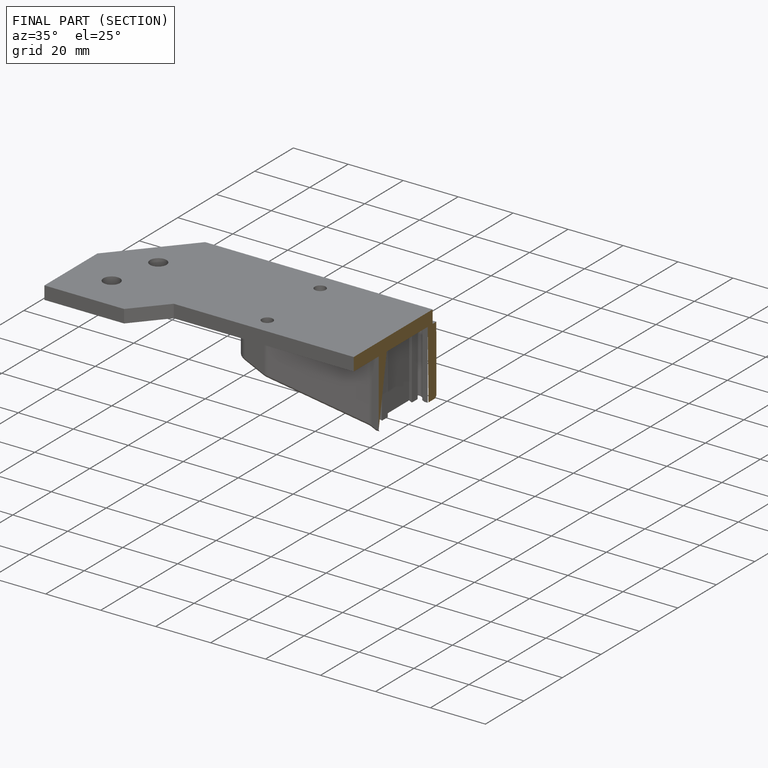
[diagram: finished part — half-section view (interior)]
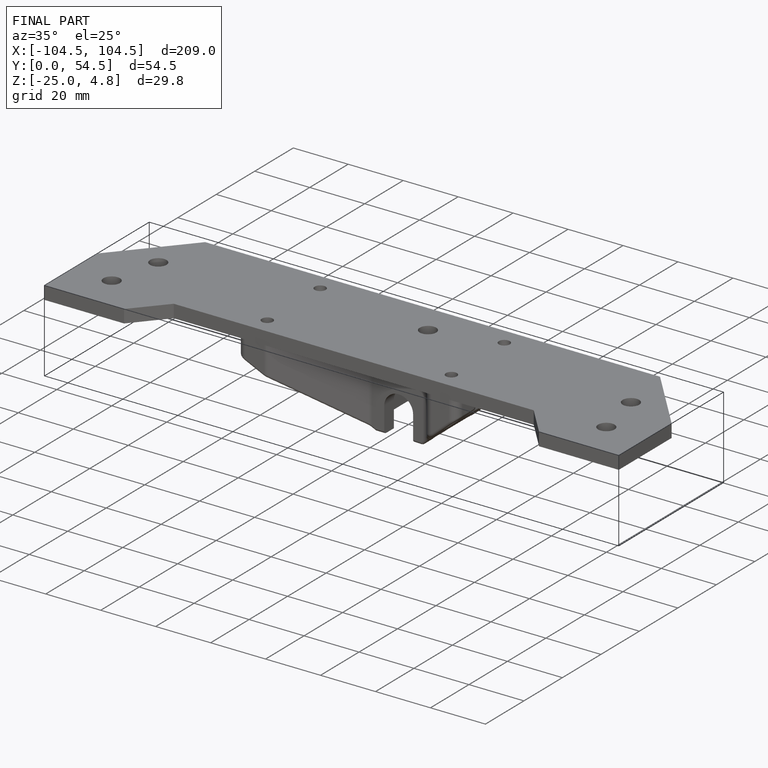
[diagram: finished part — iso view with bounding-box wireframe]
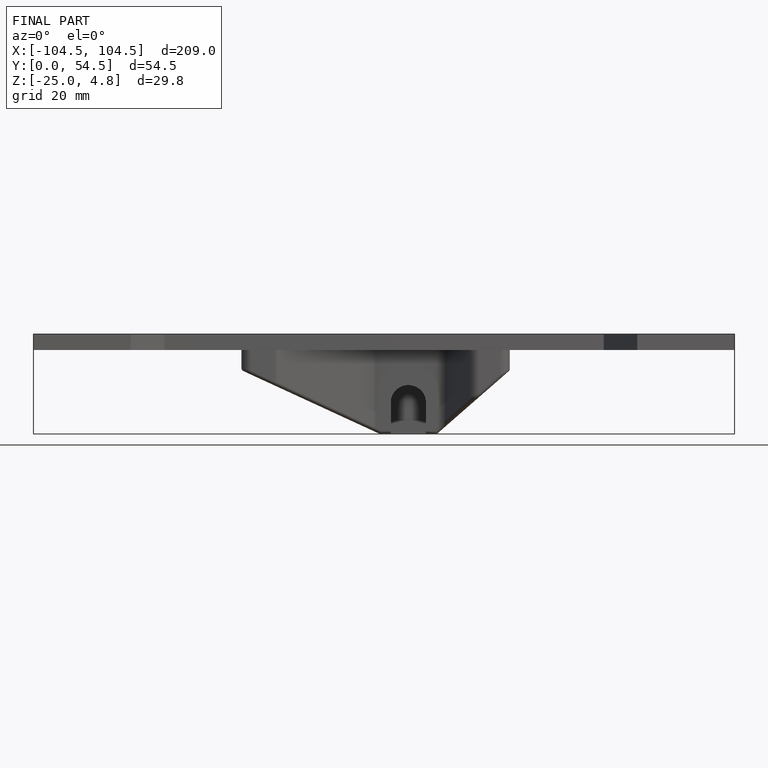
[diagram: finished part — front view with bounding-box wireframe]
